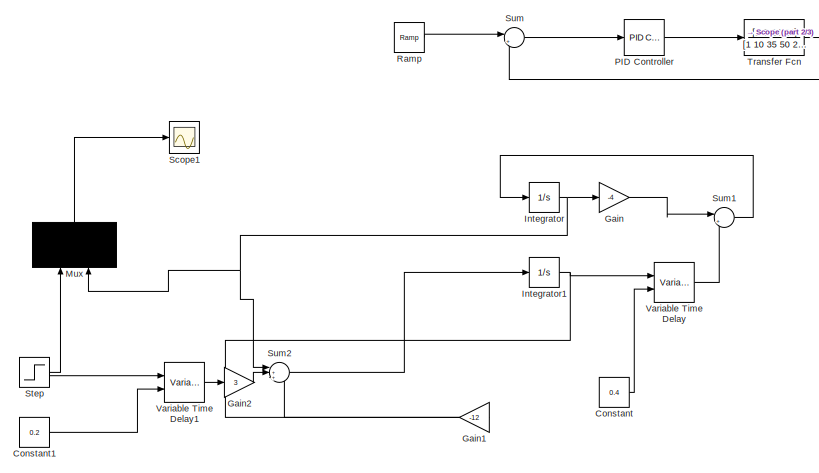
[diagram: root canvas - part 1/3, top left region]
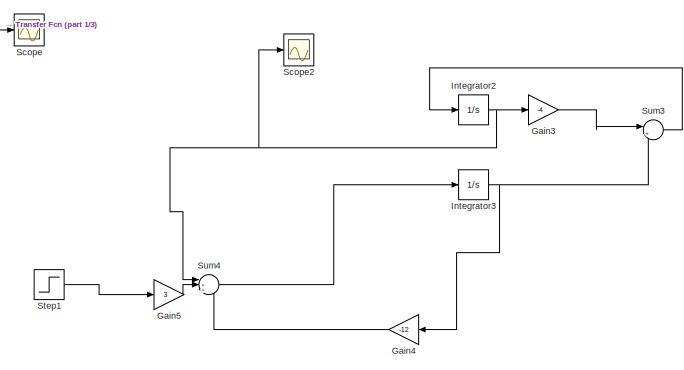
[diagram: root canvas - part 2/3, top right region]
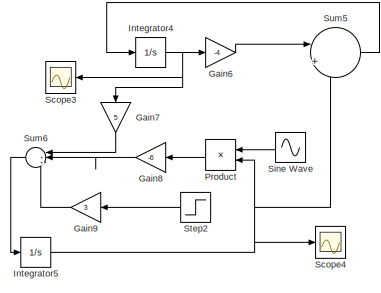
[diagram: root canvas - part 3/3, bottom left region]
MODEL slx_b969332045a9
KIND model
CONFIG AbsTol = auto
CONFIG EnableMultiTasking = off
CONFIG FixedStep = auto
CONFIG MaxStep = auto
CONFIG MinStep = auto
CONFIG RelTol = 1e-3
CONFIG SampleTimeConstraint = Unconstrained
CONFIG SolverName = VariableStepAuto
CONFIG StartTime = 0.0
BLOCK [Constant] Constant
  Value = 0.4
BLOCK [Constant] Constant1
  Value = 0.2
BLOCK [Gain] Gain
  Gain = -4
BLOCK [Gain] Gain1
  Gain = -12
  NameLocation = top
BLOCK [Gain] Gain2
  Gain = 3
BLOCK [Gain] Gain3
  Gain = -4
BLOCK [Gain] Gain4
  Gain = -12
  NameLocation = top
BLOCK [Gain] Gain5
  Gain = 3
BLOCK [Gain] Gain6
  Gain = -4
BLOCK [Gain] Gain7
  Gain = 5
  NameLocation = left
BLOCK [Gain] Gain8
  Gain = -6
  NameLocation = top
BLOCK [Gain] Gain9
  Gain = 3
  NameLocation = top
BLOCK [Integrator] Integrator
  Ports = [1, 1]
BLOCK [Integrator] Integrator1
  Ports = [1, 1]
BLOCK [Integrator] Integrator2
  Ports = [1, 1]
BLOCK [Integrator] Integrator3
  Ports = [1, 1]
BLOCK [Integrator] Integrator4
  Ports = [1, 1]
BLOCK [Integrator] Integrator5
  Ports = [1, 1]
BLOCK [Mux] Mux
  DisplayOption = bar
  Inputs = 2
  NameLocation = right
  Ports = [2, 1]
BLOCK [Reference] PID Controller  REF=slpidlib/PID Controller
  Ports = [1, 1]
  SourceBlock = slpidlib/PID Controller
  SourceProductBaseCode = SL
  SourceType = PID 1dof
BLOCK [Product] Product
  NameLocation = top
  Ports = [2, 1]
BLOCK [Reference] Ramp  REF=simulink/Sources/Ramp
  Ports = [0, 1]
  SourceBlock = simulink/Sources/Ramp
  SourceProductBaseCode = SL
  SourceType = Ramp
BLOCK [Scope] Scope
  Floating = off
  NumInputPorts = 1
  Ports = [1]
  ScopeSpecificationString = Simulink.scopes.TimeScopeBlockCfg('CurrentConfiguration', extmgr.ConfigurationSet(extmgr.Configuration('Core','General UI',true),extmgr.Configuration('Core','Source UI',true),extmgr.Configuration('Sources','WiredSimulink',true),extmgr.Configuration('Visuals','Time Domain',true,'SerializedDisplays',{struct('MinYLimReal','-6.21875','MaxYLimReal','55.96876','YLabelReal','','MinYLimMag','0.00000','Max...<+1336ch>
BLOCK [Scope] Scope1
  Floating = off
  NumInputPorts = 1
  Ports = [1]
  ScopeSpecificationString = Simulink.scopes.TimeScopeBlockCfg('CurrentConfiguration', extmgr.ConfigurationSet(extmgr.Configuration('Core','General UI',true),extmgr.Configuration('Core','Source UI',true),extmgr.Configuration('Sources','WiredSimulink',true,'DataLoggingVariableName','ScopeData1'),extmgr.Configuration('Visuals','Time Domain',true,'SerializedDisplays',{struct('MinYLimReal','-0.125','MaxYLimReal','1.125','YLabelRe...<+1392ch>
BLOCK [Scope] Scope2
  Floating = off
  NumInputPorts = 1
  Ports = [1]
  ScopeSpecificationString = Simulink.scopes.TimeScopeBlockCfg('CurrentConfiguration', extmgr.ConfigurationSet(extmgr.Configuration('Core','General UI',true),extmgr.Configuration('Core','Source UI',true),extmgr.Configuration('Sources','WiredSimulink',true,'DataLoggingVariableName','ScopeData2'),extmgr.Configuration('Visuals','Time Domain',true,'SerializedDisplays',{struct('MinYLimReal','-0.00798','MaxYLimReal','0.07181','YLab...<+1402ch>
BLOCK [Scope] Scope3
  Floating = off
  NameLocation = top
  NumInputPorts = 1
  Ports = [1]
  ScopeSpecificationString = Simulink.scopes.TimeScopeBlockCfg('CurrentConfiguration', extmgr.ConfigurationSet(extmgr.Configuration('Core','General UI',true),extmgr.Configuration('Core','Source UI',true),extmgr.Configuration('Sources','WiredSimulink',true,'DataLoggingVariableName','ScopeData3'),extmgr.Configuration('Visuals','Time Domain',true,'SerializedDisplays',{struct('MinYLimReal','-276115379478709481895352728551424.0000...<+1672ch>
BLOCK [Scope] Scope4
  Floating = off
  NumInputPorts = 1
  Ports = [1]
  ScopeSpecificationString = Simulink.scopes.TimeScopeBlockCfg('CurrentConfiguration', extmgr.ConfigurationSet(extmgr.Configuration('Core','General UI',true),extmgr.Configuration('Core','Source UI',true),extmgr.Configuration('Sources','WiredSimulink',true,'DataLoggingVariableName','ScopeData4'),extmgr.Configuration('Visuals','Time Domain',true,'SerializedDisplays',{struct('MinYLimReal','-513186.14237','MaxYLimReal','4618675.2...<+1412ch>
BLOCK [Sin] Sine Wave
  NameLocation = top
  Ports = [0, 1]
  SampleTime = 0
BLOCK [Step] Step
  SampleTime = 0
  Time = 0
BLOCK [Step] Step1
  SampleTime = 0
  Time = 0
BLOCK [Step] Step2
  NameLocation = top
  SampleTime = 0
  Time = 0
BLOCK [Sum] Sum
  Inputs = |+-
  Ports = [2, 1]
BLOCK [Sum] Sum1
  Inputs = |++
  Ports = [2, 1]
BLOCK [Sum] Sum2
  Inputs = |+++
  Ports = [3, 1]
BLOCK [Sum] Sum3
  Inputs = |++
  Ports = [2, 1]
BLOCK [Sum] Sum4
  Inputs = |+++
  Ports = [3, 1]
BLOCK [Sum] Sum5
  Inputs = |++
  Ports = [2, 1]
BLOCK [Sum] Sum6
  Inputs = |+++
  NameLocation = top
  Ports = [3, 1]
BLOCK [TransferFcn] Transfer Fcn
  Denominator = [1 10 35 50 24]
  Numerator = [1 7 24 24]
BLOCK [VariableTransportDelay] Variable Time Delay
  MaximumDelay = 0.4
  Ports = [2, 1]
  VariableDelayType = Variable transport delay
BLOCK [VariableTransportDelay] Variable Time Delay1
  MaximumDelay = 0.2
  Ports = [2, 1]
  VariableDelayType = Variable transport delay
LINE Constant1:1 -> Variable Time Delay1:2
LINE Constant:1 -> Variable Time Delay:2
LINE Gain1:1 -> Sum2:3
LINE Gain2:1 -> Sum2:2
LINE Gain3:1 -> Sum3:1
LINE Gain4:1 -> Sum4:3
LINE Gain5:1 -> Sum4:2
LINE Gain6:1 -> Sum5:1
LINE Gain7:1 -> Sum6:1
LINE Gain8:1 -> Sum6:2
LINE Gain9:1 -> Sum6:3
LINE Gain:1 -> Sum1:1
NET Integrator1:1 -> Gain1:1, Variable Time Delay:1
NET Integrator2:1 -> Gain3:1, Scope2:1, Sum4:1
NET Integrator3:1 -> Gain4:1, Sum3:2
NET Integrator4:1 -> Gain6:1, Gain7:1, Scope3:1
NET Integrator5:1 -> Product:2, Scope4:1, Sum5:2
NET Integrator:1 -> Gain:1, Mux:2, Sum2:1
LINE Mux:1 -> Scope1:1
LINE PID Controller:1 -> Transfer Fcn:1
LINE Product:1 -> Gain8:1
LINE Ramp:1 -> Sum:1
LINE Sine Wave:1 -> Product:1
LINE Step1:1 -> Gain5:1
LINE Step2:1 -> Gain9:1
NET Step:1 -> Mux:1, Variable Time Delay1:1
LINE Sum1:1 -> Integrator:1
LINE Sum2:1 -> Integrator1:1
LINE Sum3:1 -> Integrator2:1
LINE Sum4:1 -> Integrator3:1
LINE Sum5:1 -> Integrator4:1
LINE Sum6:1 -> Integrator5:1
LINE Sum:1 -> PID Controller:1
NET Transfer Fcn:1 -> Scope:1, Sum:2
LINE Variable Time Delay1:1 -> Gain2:1
LINE Variable Time Delay:1 -> Sum1:2
note: NET lines group one-source signal fan-out (src -> all destinations, sorted); 1:1 wires keep LINE
